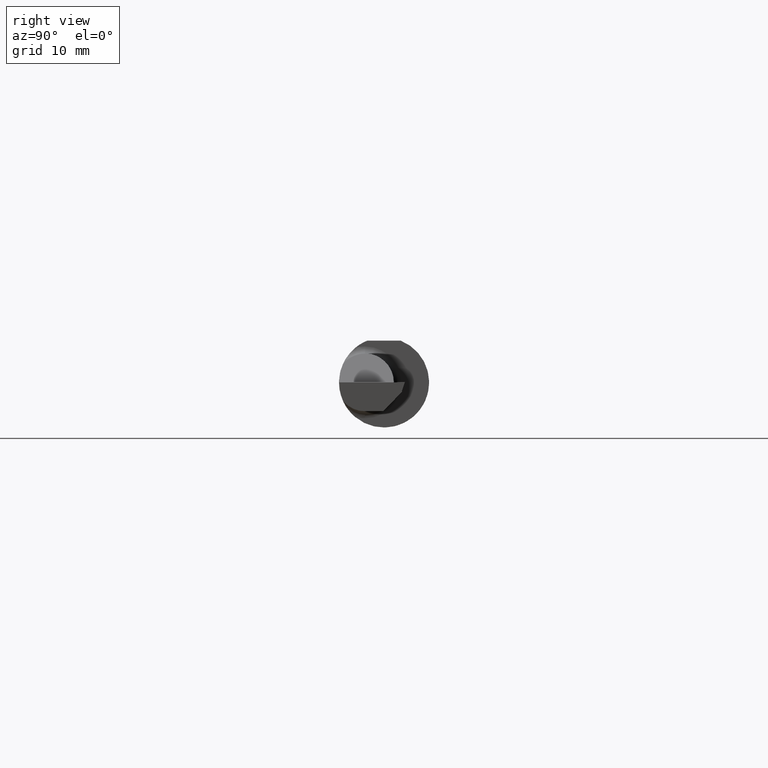
[diagram: clean part render]
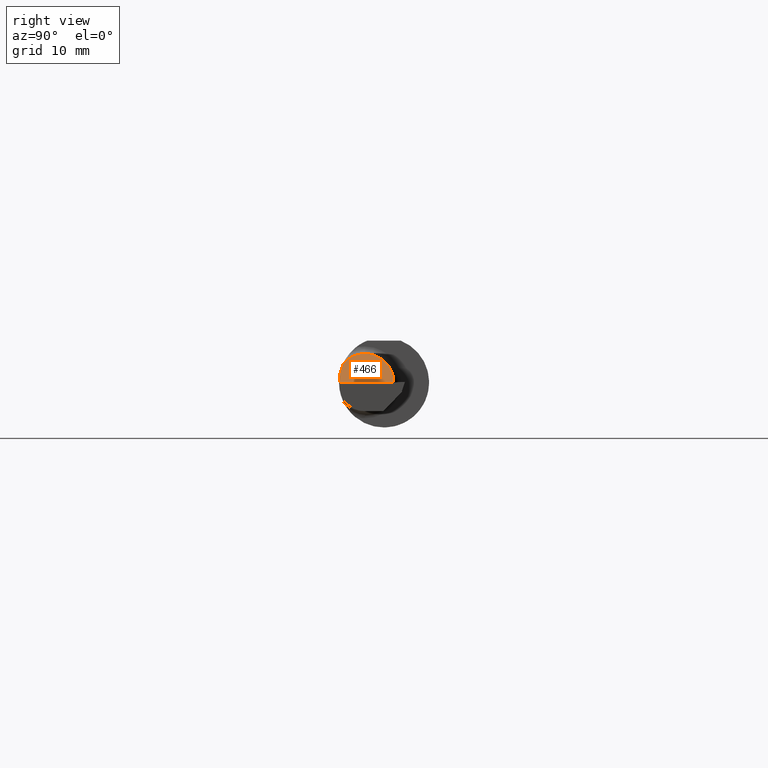
[diagram: same view with one face highlighted and labeled with its STEP entity id]
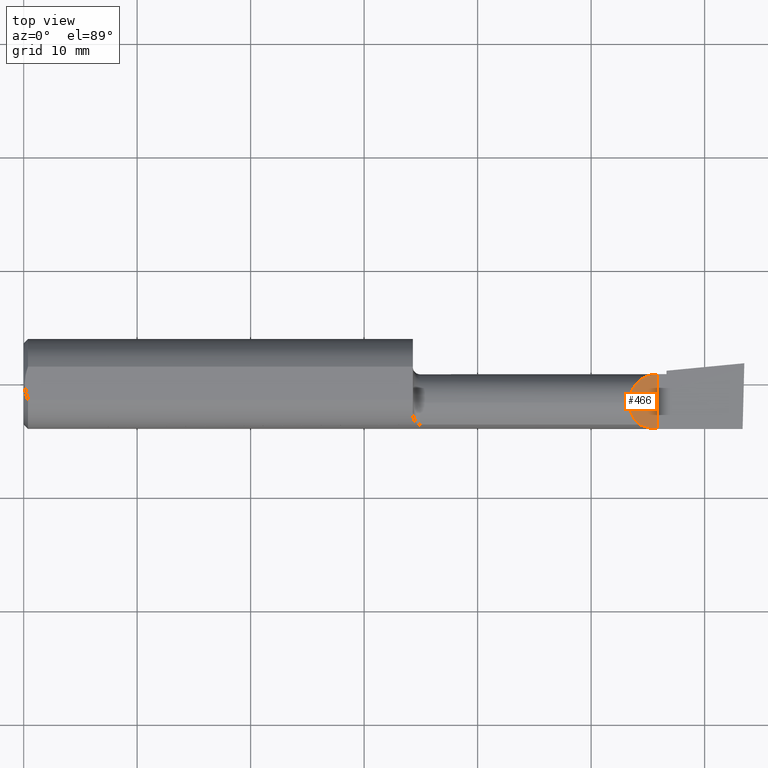
[diagram: same view with one face highlighted and labeled with its STEP entity id]
A machine part, right view. The second image highlights one B-rep face of the part: STEP entity #466.
A second angle (top view) of the same face is appended — the face is thin or edge-on in the first view.
In plain terms, the highlighted planar face has unit normal (-0.7071, 0, -0.7071).
Its self-contained STEP definition (entity closure, byte-faithful):
#7 = DIRECTION ( 'NONE',  ( -0.7071067811865436870, 0.0000000000000000000, -0.7071067811865513475 ) ) ;
#16 = FACE_OUTER_BOUND ( 'NONE', #227, .T. ) ;
#56 = ORIENTED_EDGE ( 'NONE', *, *, #616, .T. ) ;
#63 = CARTESIAN_POINT ( 'NONE',  ( 2.200000000000000178, -0.1560999999999999888, 9.797174393178826150E-17 ) ) ;
#64 = CARTESIAN_POINT ( 'NONE',  ( 2.200000000000000178, -0.1560999999999999888, 9.797174393178826150E-17 ) ) ;
#138 = CARTESIAN_POINT ( 'NONE',  ( 2.100099999999998523, -0.007479934881072268678, 0.09989999999999990554 ) ) ;
#156 = VERTEX_POINT ( 'NONE', #63 ) ;
#179 = CARTESIAN_POINT ( 'NONE',  ( 2.200000000000000178, 0.03389999999999987468, 9.797174393178826150E-17 ) ) ;
#204 =( BOUNDED_CURVE ( )  B_SPLINE_CURVE ( 3, ( #64, #383, #314, #667 ),
 .UNSPECIFIED., .F., .F. ) 
 B_SPLINE_CURVE_WITH_KNOTS ( ( 4, 4 ),
 ( 4.712388980384689674, 5.140782042693055942 ),
 .UNSPECIFIED. ) 
 CURVE ( )  GEOMETRIC_REPRESENTATION_ITEM ( )  RATIONAL_B_SPLINE_CURVE ( ( 1.000000000000000000, 0.9847649979006014576, 0.9847649979006014576, 1.000000000000000000 ) ) 
 REPRESENTATION_ITEM ( '' )  );
#221 = DIRECTION ( 'NONE',  ( -0.0000000000000000000, 1.000000000000000000, -0.0000000000000000000 ) ) ;
#227 = EDGE_LOOP ( 'NONE', ( #362, #371, #56, #284 ) ) ;
#255 = EDGE_CURVE ( 'NONE', #601, #610, #468, .T. ) ;
#259 = DIRECTION ( 'NONE',  ( -0.7071067811865513475, 0.0000000000000000000, 0.7071067811865436870 ) ) ;
#284 = ORIENTED_EDGE ( 'NONE', *, *, #675, .F. ) ;
#291 = CARTESIAN_POINT ( 'NONE',  ( 2.100099999999998968, -0.06599999999999998923, 0.09989999999999991942 ) ) ;
#314 = CARTESIAN_POINT ( 'NONE',  ( 2.155587570325277369, -0.1513252362624134539, 0.04441242967472197600 ) ) ;
#318 = PLANE ( 'NONE',  #415 ) ;
#355 = CARTESIAN_POINT ( 'NONE',  ( 2.200000000000000178, -0.2500000000000000555, 9.797174393178826150E-17 ) ) ;
#362 = ORIENTED_EDGE ( 'NONE', *, *, #255, .F. ) ;
#370 = VECTOR ( 'NONE', #221, 39.37007874015748143 ) ;
#371 = ORIENTED_EDGE ( 'NONE', *, *, #488, .F. ) ;
#383 = CARTESIAN_POINT ( 'NONE',  ( 2.177537118629004453, -0.1560999999999999333, 0.02246288137099522117 ) ) ;
#385 = CARTESIAN_POINT ( 'NONE',  ( 2.200000000000000178, -0.2500000000000000555, 9.797174393178826150E-17 ) ) ;
#408 = CARTESIAN_POINT ( 'NONE',  ( 2.135154559332283597, -0.1419939393939393668, 0.06484544066771584514 ) ) ;
#414 = CARTESIAN_POINT ( 'NONE',  ( 2.112547924827750112, -0.1227037540429563173, 0.08745207517224930227 ) ) ;
#415 = AXIS2_PLACEMENT_3D ( 'NONE', #385, #7, #259 ) ;
#432 = VERTEX_POINT ( 'NONE', #179 ) ;
#466 = ADVANCED_FACE ( 'NONE', ( #16 ), #318, .F. ) ;
#468 =( BOUNDED_CURVE ( )  B_SPLINE_CURVE ( 3, ( #695, #414, #648, #291 ),
 .UNSPECIFIED., .F., .F. ) 
 B_SPLINE_CURVE_WITH_KNOTS ( ( 4, 4 ),
 ( 5.418794317430680962, 6.283185307179586232 ),
 .UNSPECIFIED. ) 
 CURVE ( )  GEOMETRIC_REPRESENTATION_ITEM ( )  RATIONAL_B_SPLINE_CURVE ( ( 1.000000000000000000, 0.9386988813357772798, 0.9386988813357772798, 1.000000000000000000 ) ) 
 REPRESENTATION_ITEM ( '' )  );
#486 = CARTESIAN_POINT ( 'NONE',  ( 2.100099999999998968, -0.06599999999999998923, 0.09989999999999991942 ) ) ;
#488 = EDGE_CURVE ( 'NONE', #156, #601, #204, .T. ) ;
#493 = LINE ( 'NONE', #355, #370 ) ;
#520 =( BOUNDED_CURVE ( )  B_SPLINE_CURVE ( 3, ( #486, #138, #673, #544 ),
 .UNSPECIFIED., .F., .F. ) 
 B_SPLINE_CURVE_WITH_KNOTS ( ( 4, 4 ),
 ( 0.0000000000000000000, 1.570796326794896114 ),
 .UNSPECIFIED. ) 
 CURVE ( )  GEOMETRIC_REPRESENTATION_ITEM ( )  RATIONAL_B_SPLINE_CURVE ( ( 1.000000000000000000, 0.8047378541243650485, 0.8047378541243650485, 1.000000000000000000 ) ) 
 REPRESENTATION_ITEM ( '' )  );
#544 = CARTESIAN_POINT ( 'NONE',  ( 2.200000000000000178, 0.03389999999999987468, 9.797174393178826150E-17 ) ) ;
#601 = VERTEX_POINT ( 'NONE', #408 ) ;
#602 = CARTESIAN_POINT ( 'NONE',  ( 2.100099999999998968, -0.06599999999999998923, 0.09989999999999991942 ) ) ;
#610 = VERTEX_POINT ( 'NONE', #602 ) ;
#616 = EDGE_CURVE ( 'NONE', #156, #432, #493, .T. ) ;
#648 = CARTESIAN_POINT ( 'NONE',  ( 2.100099999999999412, -0.09571819601686552825, 0.09989999999999994718 ) ) ;
#667 = CARTESIAN_POINT ( 'NONE',  ( 2.135154559332283597, -0.1419939393939393668, 0.06484544066771584514 ) ) ;
#673 = CARTESIAN_POINT ( 'NONE',  ( 2.141479934881071578, 0.03389999999999987468, 0.05852006511892780122 ) ) ;
#675 = EDGE_CURVE ( 'NONE', #610, #432, #520, .T. ) ;
#695 = CARTESIAN_POINT ( 'NONE',  ( 2.135154559332283597, -0.1419939393939393668, 0.06484544066771584514 ) ) ;